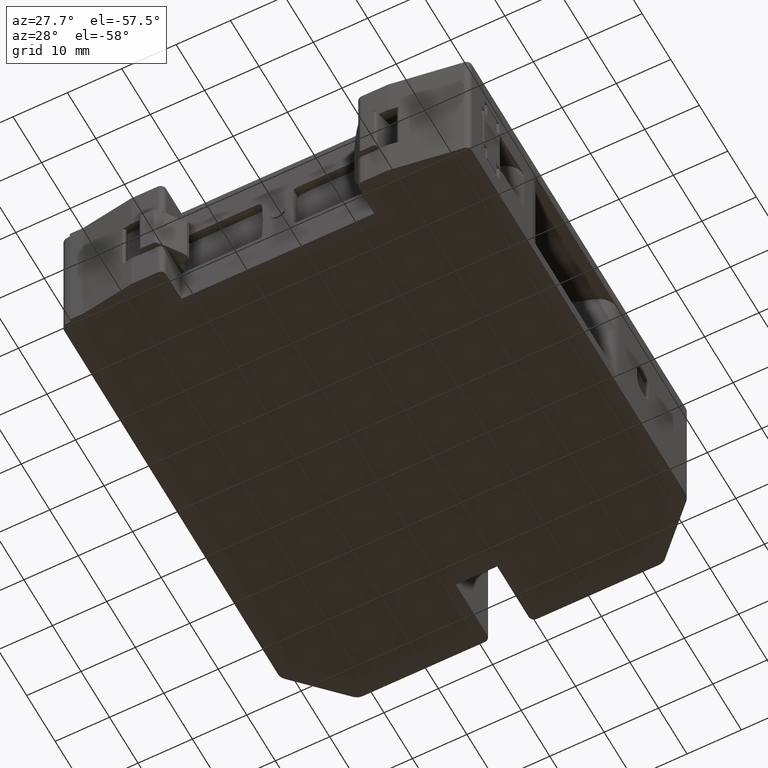
[diagram: clean part render]
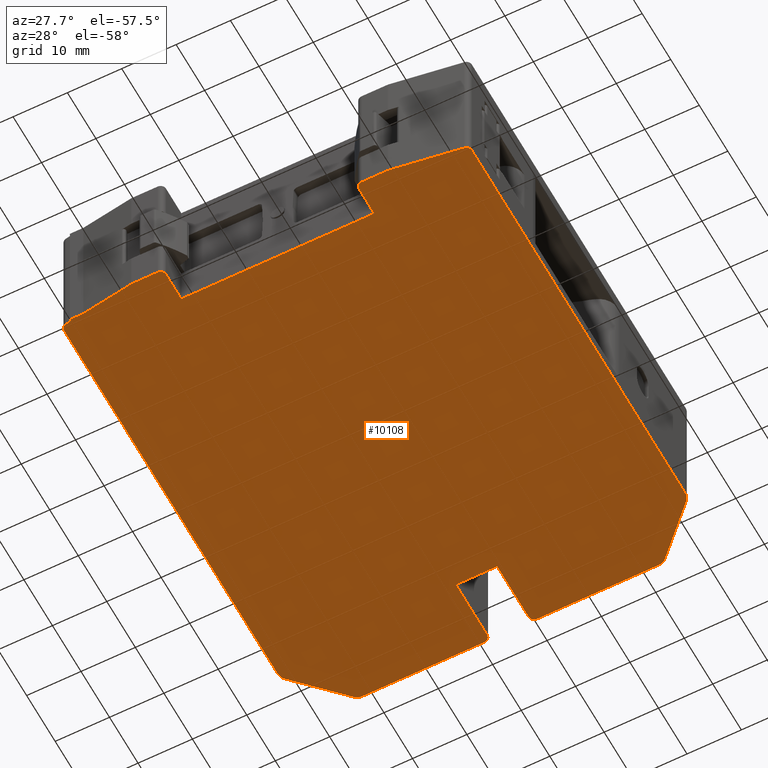
[diagram: same view with one face highlighted and labeled with its STEP entity id]
A machine part, auxiliary view. The second image highlights one B-rep face of the part: STEP entity #10108.
In plain terms, the highlighted planar face has unit normal (-0, 0, -1).
Its self-contained STEP definition (entity closure, byte-faithful):
#11 = CIRCLE ( 'NONE', #12, 1.000000000000000900 ) ;
#12 = AXIS2_PLACEMENT_3D ( 'NONE', #16915, #16982, #16924 ) ;
#31 = CIRCLE ( 'NONE', #32, 1.000000000000000900 ) ;
#32 = AXIS2_PLACEMENT_3D ( 'NONE', #17071, #17089, #17051 ) ;
#33 = CIRCLE ( 'NONE', #34, 1.999999999999998200 ) ;
#34 = AXIS2_PLACEMENT_3D ( 'NONE', #17044, #17075, #17059 ) ;
#75 = AXIS2_PLACEMENT_3D ( 'NONE', #17807, #17808, #17809 ) ;
#81 = CIRCLE ( 'NONE', #75, 1.999999999999939400 ) ;
#110 = CIRCLE ( 'NONE', #150, 1.999999999999974000 ) ;
#150 = AXIS2_PLACEMENT_3D ( 'NONE', #12453, #12435, #12465 ) ;
#461 = LINE ( 'NONE', #601, #16539 ) ;
#573 = DIRECTION ( 'NONE',  ( -1.000000000000000000, 3.007920892131264700E-032, 2.448524028097272300E-014 ) ) ;
#601 = CARTESIAN_POINT ( 'NONE',  ( 29.30214936950242000, -60.00704621402866900, -24.25450991170726000 ) ) ;
#639 = LINE ( 'NONE', #661, #16548 ) ;
#657 = DIRECTION ( 'NONE',  ( 4.678622643038188300E-030, 1.000000000000000000, 5.668231806829383100E-016 ) ) ;
#661 = CARTESIAN_POINT ( 'NONE',  ( -30.54246009920980100, -53.59993437637680800, -24.25450991170579200 ) ) ;
#1346 = CARTESIAN_POINT ( 'NONE',  ( -28.04609261156722500, -60.00704621402866900, -24.25450991170585600 ) ) ;
#1566 = VECTOR ( 'NONE', #20012, 1000.000000000000100 ) ;
#1588 = VECTOR ( 'NONE', #20021, 1000.000000000000000 ) ;
#1592 = CIRCLE ( 'NONE', #1601, 0.9999999999999749100 ) ;
#1601 = AXIS2_PLACEMENT_3D ( 'NONE', #20051, #20053, #20052 ) ;
#1612 = VECTOR ( 'NONE', #20085, 1000.000000000000000 ) ;
#1624 = CIRCLE ( 'NONE', #1625, 0.9999999999997545300 ) ;
#1625 = AXIS2_PLACEMENT_3D ( 'NONE', #20097, #20096, #20095 ) ;
#1636 = CIRCLE ( 'NONE', #1647, 0.9999999999999731300 ) ;
#1647 = AXIS2_PLACEMENT_3D ( 'NONE', #20156, #20276, #20054 ) ;
#1682 = VECTOR ( 'NONE', #14184, 1000.000000000000000 ) ;
#1836 = VECTOR ( 'NONE', #24073, 1000.000000000000000 ) ;
#1838 = VECTOR ( 'NONE', #24099, 1000.000000000000000 ) ;
#1839 = AXIS2_PLACEMENT_3D ( 'NONE', #24110, #24129, #24136 ) ;
#1841 = CIRCLE ( 'NONE', #1861, 0.9999999999998898700 ) ;
#1854 = CIRCLE ( 'NONE', #1839, 0.9999999999999662500 ) ;
#1861 = AXIS2_PLACEMENT_3D ( 'NONE', #24070, #24083, #24097 ) ;
#1872 = CIRCLE ( 'NONE', #1900, 1.000000000000000900 ) ;
#1878 = VECTOR ( 'NONE', #19013, 1000.000000000000000 ) ;
#1897 = VECTOR ( 'NONE', #22399, 1000.000000000000000 ) ;
#1900 = AXIS2_PLACEMENT_3D ( 'NONE', #19002, #18996, #19000 ) ;
#1934 = EDGE_CURVE ( 'NONE', #11182, #11340, #20726, .T. ) ;
#3756 = VECTOR ( 'NONE', #20736, 1000.000000000000100 ) ;
#5756 = EDGE_LOOP ( 'NONE', ( #21811, #21826, #21807, #21801, #21827, #21828, #21802, #21796, #21822, #21804, #21849, #21852, #21858, #21833, #21817, #21834, #21856, #21840, #21837, #21851, #21854, #21830, #21832, #21860, #21836, #21850, #21838, #21846, #21812, #21853, #21855 ) ) ;
#5886 = LINE ( 'NONE', #5968, #1897 ) ;
#5968 = CARTESIAN_POINT ( 'NONE',  ( 315.2915140385550200, -18.59369379607220900, -24.25450991171424100 ) ) ;
#8019 = EDGE_CURVE ( 'NONE', #20442, #20405, #19985, .T. ) ;
#8030 = EDGE_CURVE ( 'NONE', #20426, #20446, #20016, .T. ) ;
#8044 = EDGE_CURVE ( 'NONE', #20455, #20446, #1592, .T. ) ;
#8065 = EDGE_CURVE ( 'NONE', #20455, #20425, #20065, .T. ) ;
#8067 = EDGE_CURVE ( 'NONE', #20426, #11340, #1624, .T. ) ;
#8088 = EDGE_CURVE ( 'NONE', #20442, #11623, #1636, .T. ) ;
#8215 = CARTESIAN_POINT ( 'NONE',  ( 1.334948940202564000, -53.59993437637680800, -24.25450991170657000 ) ) ;
#8270 = LINE ( 'NONE', #8215, #9966 ) ;
#8272 = DIRECTION ( 'NONE',  ( 2.525920139703856900E-029, -1.000000000000000000, -5.668231806829383100E-016 ) ) ;
#8293 = CARTESIAN_POINT ( 'NONE',  ( 40.63494894020685400, 16.33133758237956500, -24.25450991170750800 ) ) ;
#8296 = DIRECTION ( 'NONE',  ( -1.000000000000000000, 5.204170427933684800E-015, 2.428612866369052700E-014 ) ) ;
#8312 = DIRECTION ( 'NONE',  ( 2.448524028097272300E-014, -5.668231806829383100E-016, 1.000000000000000000 ) ) ;
#8541 = DIRECTION ( 'NONE',  ( 1.000000000000000000, 1.548027470065081100E-028, -2.448524028097272300E-014 ) ) ;
#8551 = LINE ( 'NONE', #8553, #9979 ) ;
#8553 = CARTESIAN_POINT ( 'NONE',  ( 29.30214936950242000, 26.56129512537441800, -24.25450991170721000 ) ) ;
#8627 = LINE ( 'NONE', #8642, #9983 ) ;
#8632 = DIRECTION ( 'NONE',  ( 0.7071067811865474600, 0.7071067811865474600, -1.691287492686318800E-014 ) ) ;
#8642 = CARTESIAN_POINT ( 'NONE',  ( -36.91130038689878000, 12.61351538002439200, -24.25450991170559700 ) ) ;
#8700 = EDGE_CURVE ( 'NONE', #20416, #20406, #1841, .T. ) ;
#8703 = EDGE_CURVE ( 'NONE', #20420, #11809, #24076, .T. ) ;
#8704 = EDGE_CURVE ( 'NONE', #20418, #20416, #24081, .T. ) ;
#8706 = EDGE_CURVE ( 'NONE', #20418, #20441, #1854, .T. ) ;
#8772 = EDGE_CURVE ( 'NONE', #20441, #20435, #19010, .T. ) ;
#8777 = EDGE_CURVE ( 'NONE', #20412, #20420, #1872, .T. ) ;
#8786 = EDGE_CURVE ( 'NONE', #20412, #20406, #5886, .T. ) ;
#8850 = EDGE_CURVE ( 'NONE', #20435, #20425, #14171, .T. ) ;
#9012 = FACE_OUTER_BOUND ( 'NONE', #5756, .T. ) ;
#9036 = PLANE ( 'NONE',  #10003 ) ;
#9037 = CARTESIAN_POINT ( 'NONE',  ( 29.30214936950242000, -53.59993437637680800, -24.25450991170725600 ) ) ;
#9068 = DIRECTION ( 'NONE',  ( -2.448524028097272300E-014, 5.668231806829383100E-016, -1.000000000000000000 ) ) ;
#9105 = DIRECTION ( 'NONE',  ( -1.000000000000000000, 0.0000000000000000000, 2.448524028097272300E-014 ) ) ;
#9713 = VECTOR ( 'NONE', #13581, 1000.000000000000000 ) ;
#9749 = VECTOR ( 'NONE', #13590, 1000.000000000000000 ) ;
#9847 = EDGE_CURVE ( 'NONE', #11836, #11743, #13539, .T. ) ;
#9855 = EDGE_CURVE ( 'NONE', #11743, #11787, #13614, .T. ) ;
#9883 = EDGE_CURVE ( 'NONE', #11805, #11771, #13701, .T. ) ;
#9891 = EDGE_CURVE ( 'NONE', #11978, #11800, #13710, .T. ) ;
#9923 = VECTOR ( 'NONE', #13757, 1000.000000000000000 ) ;
#9929 = VECTOR ( 'NONE', #13693, 1000.000000000000100 ) ;
#9942 = EDGE_CURVE ( 'NONE', #11782, #11836, #8270, .T. ) ;
#9966 = VECTOR ( 'NONE', #8272, 1000.000000000000000 ) ;
#9972 = AXIS2_PLACEMENT_3D ( 'NONE', #8293, #8312, #8296 ) ;
#9979 = VECTOR ( 'NONE', #8541, 1000.000000000000000 ) ;
#9983 = VECTOR ( 'NONE', #8632, 1000.000000000000100 ) ;
#9984 = CIRCLE ( 'NONE', #9972, 1.999999999998745900 ) ;
#9986 = EDGE_CURVE ( 'NONE', #11809, #11771, #9984, .T. ) ;
#10003 = AXIS2_PLACEMENT_3D ( 'NONE', #9037, #9068, #9105 ) ;
#10030 = EDGE_CURVE ( 'NONE', #11784, #11968, #8551, .T. ) ;
#10036 = EDGE_CURVE ( 'NONE', #11925, #12018, #8627, .T. ) ;
#10108 = ADVANCED_FACE ( 'NONE', ( #9012 ), #9036, .T. ) ;
#10670 = EDGE_CURVE ( 'NONE', #11182, #20561, #461, .T. ) ;
#10682 = EDGE_CURVE ( 'NONE', #20561, #20405, #639, .T. ) ;
#11182 = VERTEX_POINT ( 'NONE', #1346 ) ;
#11340 = VERTEX_POINT ( 'NONE', #19115 ) ;
#11623 = VERTEX_POINT ( 'NONE', #19344 ) ;
#11743 = VERTEX_POINT ( 'NONE', #19480 ) ;
#11765 = VERTEX_POINT ( 'NONE', #19459 ) ;
#11771 = VERTEX_POINT ( 'NONE', #19434 ) ;
#11782 = VERTEX_POINT ( 'NONE', #19510 ) ;
#11784 = VERTEX_POINT ( 'NONE', #19487 ) ;
#11787 = VERTEX_POINT ( 'NONE', #19486 ) ;
#11800 = VERTEX_POINT ( 'NONE', #19535 ) ;
#11805 = VERTEX_POINT ( 'NONE', #19517 ) ;
#11809 = VERTEX_POINT ( 'NONE', #19496 ) ;
#11836 = VERTEX_POINT ( 'NONE', #19567 ) ;
#11925 = VERTEX_POINT ( 'NONE', #19049 ) ;
#11968 = VERTEX_POINT ( 'NONE', #16772 ) ;
#11978 = VERTEX_POINT ( 'NONE', #16844 ) ;
#12018 = VERTEX_POINT ( 'NONE', #16911 ) ;
#12435 = DIRECTION ( 'NONE',  ( 2.448524028097272300E-014, -5.668231806829383100E-016, 1.000000000000000000 ) ) ;
#12453 = CARTESIAN_POINT ( 'NONE',  ( -22.13509351680265200, 24.56129512537441400, -24.25450991170595600 ) ) ;
#12465 = DIRECTION ( 'NONE',  ( -1.000000000000000000, -3.469446951953659200E-015, 2.428612866367561500E-014 ) ) ;
#13539 = LINE ( 'NONE', #13548, #9713 ) ;
#13548 = CARTESIAN_POINT ( 'NONE',  ( 8.434948940205861900, 14.56129512537444400, -24.25450991170670900 ) ) ;
#13581 = DIRECTION ( 'NONE',  ( 1.000000000000000000, -2.464568551788949800E-029, -2.448524028097272300E-014 ) ) ;
#13590 = DIRECTION ( 'NONE',  ( -2.525920139703856900E-029, 1.000000000000000000, 5.668231806829383100E-016 ) ) ;
#13602 = CARTESIAN_POINT ( 'NONE',  ( 8.934948940205970300, -53.59993437637680800, -24.25450991170675500 ) ) ;
#13614 = LINE ( 'NONE', #13602, #9749 ) ;
#13693 = DIRECTION ( 'NONE',  ( 0.7071067811865474600, -0.7071067811865474600, -1.771448395645245000E-014 ) ) ;
#13701 = LINE ( 'NONE', #13719, #9929 ) ;
#13710 = LINE ( 'NONE', #13753, #9923 ) ;
#13719 = CARTESIAN_POINT ( 'NONE',  ( 71.34839869660505900, -11.55368504927417600, -24.25450991170826100 ) ) ;
#13753 = CARTESIAN_POINT ( 'NONE',  ( 29.30214936950242000, 26.56129512537347300, -24.25450991170721000 ) ) ;
#13757 = DIRECTION ( 'NONE',  ( 1.000000000000000000, 1.603500106181745500E-028, -2.448524028097272300E-014 ) ) ;
#14163 = CARTESIAN_POINT ( 'NONE',  ( 29.30214936950242000, -55.09993130216380300, -24.25450991170725600 ) ) ;
#14171 = LINE ( 'NONE', #14163, #1682 ) ;
#14184 = DIRECTION ( 'NONE',  ( -1.000000000000000000, 0.0000000000000000000, 2.448524028097272300E-014 ) ) ;
#16539 = VECTOR ( 'NONE', #573, 1000.000000000000000 ) ;
#16548 = VECTOR ( 'NONE', #657, 1000.000000000000000 ) ;
#16772 = CARTESIAN_POINT ( 'NONE',  ( 0.3349489402028338300, 26.56129512537441400, -24.25450991170651000 ) ) ;
#16844 = CARTESIAN_POINT ( 'NONE',  ( 9.934948940205972100, 26.56129512537347300, -24.25450991170671600 ) ) ;
#16911 = CARTESIAN_POINT ( 'NONE',  ( -23.54930707917421600, 25.97550868774894500, -24.25450991170592700 ) ) ;
#16915 = CARTESIAN_POINT ( 'NONE',  ( 9.934948940205972100, 25.56129512537346200, -24.25450991170671600 ) ) ;
#16924 = DIRECTION ( 'NONE',  ( -1.000000000000000000, 0.0000000000000000000, 2.428612866367527700E-014 ) ) ;
#16982 = DIRECTION ( 'NONE',  ( 2.448524028097272300E-014, -5.668231806829383100E-016, 1.000000000000000000 ) ) ;
#17044 = CARTESIAN_POINT ( 'NONE',  ( 32.40499139721119800, 24.56129512537346600, -24.25450991170728800 ) ) ;
#17051 = DIRECTION ( 'NONE',  ( -1.000000000000000000, 0.0000000000000000000, 2.428612866367527700E-014 ) ) ;
#17059 = DIRECTION ( 'NONE',  ( -1.000000000000000000, 1.734723475976808700E-015, 2.428612866367532100E-014 ) ) ;
#17071 = CARTESIAN_POINT ( 'NONE',  ( 0.3349489402025629900, 25.56129512537441400, -24.25450991170651000 ) ) ;
#17075 = DIRECTION ( 'NONE',  ( 2.448524028097272300E-014, -5.668231806829383100E-016, 1.000000000000000000 ) ) ;
#17089 = DIRECTION ( 'NONE',  ( 2.448524028097272300E-014, -5.668231806829383100E-016, 1.000000000000000000 ) ) ;
#17807 = CARTESIAN_POINT ( 'NONE',  ( -30.36505105979740200, 16.33133758237956500, -24.25450991170576000 ) ) ;
#17808 = DIRECTION ( 'NONE',  ( 2.448524028097272300E-014, -5.668231806829383100E-016, 1.000000000000000000 ) ) ;
#17809 = DIRECTION ( 'NONE',  ( -1.000000000000000000, 1.387778780781487800E-014, 2.428612866367603500E-014 ) ) ;
#18996 = DIRECTION ( 'NONE',  ( 2.448524028097272300E-014, -5.668231806829383100E-016, 1.000000000000000000 ) ) ;
#19000 = DIRECTION ( 'NONE',  ( -1.000000000000000000, 0.0000000000000000000, 2.428612866367527700E-014 ) ) ;
#19002 = CARTESIAN_POINT ( 'NONE',  ( 41.63494894020308800, -58.49968170351445500, -24.25450991170755800 ) ) ;
#19010 = LINE ( 'NONE', #19012, #1878 ) ;
#19012 = CARTESIAN_POINT ( 'NONE',  ( 22.88494170432973700, -53.59993437637577100, -24.25450991170710000 ) ) ;
#19013 = DIRECTION ( 'NONE',  ( 1.609390023793845000E-013, 1.000000000000000000, 5.668231806789976500E-016 ) ) ;
#19049 = CARTESIAN_POINT ( 'NONE',  ( -31.77926462217014200, 17.74555114475302300, -24.25450991170573200 ) ) ;
#19115 = CARTESIAN_POINT ( 'NONE',  ( -18.54460250782192400, -61.42771029660850200, -24.25450991170608700 ) ) ;
#19344 = CARTESIAN_POINT ( 'NONE',  ( -32.36505105979711800, -58.49967953969945000, -24.25450991170575300 ) ) ;
#19434 = CARTESIAN_POINT ( 'NONE',  ( 42.04916250257835500, 17.74555114475252900, -24.25450991170753700 ) ) ;
#19459 = CARTESIAN_POINT ( 'NONE',  ( -32.36505105979725300, 16.33133758237948600, -24.25450991170570300 ) ) ;
#19480 = CARTESIAN_POINT ( 'NONE',  ( 8.934948940205972100, 14.56129512537444400, -24.25450991170671600 ) ) ;
#19486 = CARTESIAN_POINT ( 'NONE',  ( 8.934948940205972100, 25.56129512537337300, -24.25450991170669100 ) ) ;
#19487 = CARTESIAN_POINT ( 'NONE',  ( -22.13509351680265200, 26.56129512537441400, -24.25450991170595600 ) ) ;
#19496 = CARTESIAN_POINT ( 'NONE',  ( 42.63494894020559700, 16.33133758237956100, -24.25450991170753700 ) ) ;
#19510 = CARTESIAN_POINT ( 'NONE',  ( 1.334948940202564000, 25.56129512537440400, -24.25450991170653800 ) ) ;
#19517 = CARTESIAN_POINT ( 'NONE',  ( 33.81920495958417700, 25.97550868774671400, -24.25450991170731300 ) ) ;
#19535 = CARTESIAN_POINT ( 'NONE',  ( 32.40499139721152500, 26.56129512537347300, -24.25450991170727400 ) ) ;
#19567 = CARTESIAN_POINT ( 'NONE',  ( 1.334948940204788900, 14.56129512537444400, -24.25450991170653100 ) ) ;
#19955 = EDGE_CURVE ( 'NONE', #11623, #11765, #23835, .T. ) ;
#19985 = LINE ( 'NONE', #20004, #1566 ) ;
#20002 = CARTESIAN_POINT ( 'NONE',  ( 27.28494894019839000, -61.43870487463007600, -24.25450991170721000 ) ) ;
#20004 = CARTESIAN_POINT ( 'NONE',  ( 306.8003474498290800, -110.0732548635922500, -24.25450991171408100 ) ) ;
#20012 = DIRECTION ( 'NONE',  ( 0.9890058987969039300, -0.1478760702241179700, -2.429986665581291200E-014 ) ) ;
#20016 = LINE ( 'NONE', #20002, #1588 ) ;
#20021 = DIRECTION ( 'NONE',  ( 1.000000000000000000, -7.527063337521148800E-014, -2.448524028097276700E-014 ) ) ;
#20051 = CARTESIAN_POINT ( 'NONE',  ( -13.61505829567242300, -60.43870439781260700, -24.25450991170620800 ) ) ;
#20052 = DIRECTION ( 'NONE',  ( -1.000000000000000000, 0.0000000000000000000, 2.428612866367590800E-014 ) ) ;
#20053 = DIRECTION ( 'NONE',  ( -2.448524028097272300E-014, 5.668231806829383100E-016, -1.000000000000000000 ) ) ;
#20054 = DIRECTION ( 'NONE',  ( -1.000000000000000000, 0.0000000000000000000, 2.428612866367595200E-014 ) ) ;
#20065 = LINE ( 'NONE', #20078, #1612 ) ;
#20078 = CARTESIAN_POINT ( 'NONE',  ( -12.61505829567108300, -53.59993437637049900, -24.25450991170622900 ) ) ;
#20085 = DIRECTION ( 'NONE',  ( 1.505412667504014900E-013, 1.000000000000000000, 5.668231806792522600E-016 ) ) ;
#20095 = DIRECTION ( 'NONE',  ( -1.000000000000000000, 0.0000000000000000000, 2.428612866368126000E-014 ) ) ;
#20096 = DIRECTION ( 'NONE',  ( -2.448524028097272300E-014, 5.668231806829383100E-016, -1.000000000000000000 ) ) ;
#20097 = CARTESIAN_POINT ( 'NONE',  ( -18.39672643759793800, -60.43870439781189700, -24.25450991170609400 ) ) ;
#20156 = CARTESIAN_POINT ( 'NONE',  ( -31.36505105979711800, -58.49967953969945000, -24.25450991170576700 ) ) ;
#20276 = DIRECTION ( 'NONE',  ( -2.448524028097272300E-014, 5.668231806829383100E-016, -1.000000000000000000 ) ) ;
#20405 = VERTEX_POINT ( 'NONE', #23879 ) ;
#20406 = VERTEX_POINT ( 'NONE', #23881 ) ;
#20412 = VERTEX_POINT ( 'NONE', #23903 ) ;
#20416 = VERTEX_POINT ( 'NONE', #23911 ) ;
#20418 = VERTEX_POINT ( 'NONE', #23886 ) ;
#20420 = VERTEX_POINT ( 'NONE', #23906 ) ;
#20425 = VERTEX_POINT ( 'NONE', #23888 ) ;
#20426 = VERTEX_POINT ( 'NONE', #23924 ) ;
#20435 = VERTEX_POINT ( 'NONE', #23983 ) ;
#20441 = VERTEX_POINT ( 'NONE', #23954 ) ;
#20442 = VERTEX_POINT ( 'NONE', #23997 ) ;
#20446 = VERTEX_POINT ( 'NONE', #23969 ) ;
#20455 = VERTEX_POINT ( 'NONE', #23988 ) ;
#20561 = VERTEX_POINT ( 'NONE', #23018 ) ;
#20726 = LINE ( 'NONE', #20731, #3756 ) ;
#20731 = CARTESIAN_POINT ( 'NONE',  ( 306.8003474498290800, -110.0732548635922500, -24.25450991171408100 ) ) ;
#20736 = DIRECTION ( 'NONE',  ( 0.9890058987969039300, -0.1478760702241179700, -2.429986665581291200E-014 ) ) ;
#21050 = EDGE_CURVE ( 'NONE', #11978, #11787, #11, .T. ) ;
#21071 = EDGE_CURVE ( 'NONE', #11782, #11968, #31, .T. ) ;
#21076 = EDGE_CURVE ( 'NONE', #11805, #11800, #33, .T. ) ;
#21341 = EDGE_CURVE ( 'NONE', #11925, #11765, #81, .T. ) ;
#21538 = EDGE_CURVE ( 'NONE', #11784, #12018, #110, .T. ) ;
#21617 = VECTOR ( 'NONE', #23863, 1000.000000000000000 ) ;
#21796 = ORIENTED_EDGE ( 'NONE', *, *, #10036, .T. ) ;
#21801 = ORIENTED_EDGE ( 'NONE', *, *, #8019, .F. ) ;
#21802 = ORIENTED_EDGE ( 'NONE', *, *, #21341, .F. ) ;
#21804 = ORIENTED_EDGE ( 'NONE', *, *, #10030, .T. ) ;
#21807 = ORIENTED_EDGE ( 'NONE', *, *, #10682, .T. ) ;
#21811 = ORIENTED_EDGE ( 'NONE', *, *, #1934, .F. ) ;
#21812 = ORIENTED_EDGE ( 'NONE', *, *, #8044, .T. ) ;
#21817 = ORIENTED_EDGE ( 'NONE', *, *, #21050, .F. ) ;
#21822 = ORIENTED_EDGE ( 'NONE', *, *, #21538, .F. ) ;
#21826 = ORIENTED_EDGE ( 'NONE', *, *, #10670, .T. ) ;
#21827 = ORIENTED_EDGE ( 'NONE', *, *, #8088, .T. ) ;
#21828 = ORIENTED_EDGE ( 'NONE', *, *, #19955, .T. ) ;
#21830 = ORIENTED_EDGE ( 'NONE', *, *, #8786, .T. ) ;
#21832 = ORIENTED_EDGE ( 'NONE', *, *, #8700, .F. ) ;
#21833 = ORIENTED_EDGE ( 'NONE', *, *, #9855, .T. ) ;
#21834 = ORIENTED_EDGE ( 'NONE', *, *, #9891, .T. ) ;
#21836 = ORIENTED_EDGE ( 'NONE', *, *, #8706, .T. ) ;
#21837 = ORIENTED_EDGE ( 'NONE', *, *, #9986, .F. ) ;
#21838 = ORIENTED_EDGE ( 'NONE', *, *, #8850, .T. ) ;
#21840 = ORIENTED_EDGE ( 'NONE', *, *, #9883, .T. ) ;
#21846 = ORIENTED_EDGE ( 'NONE', *, *, #8065, .F. ) ;
#21849 = ORIENTED_EDGE ( 'NONE', *, *, #21071, .F. ) ;
#21850 = ORIENTED_EDGE ( 'NONE', *, *, #8772, .T. ) ;
#21851 = ORIENTED_EDGE ( 'NONE', *, *, #8703, .F. ) ;
#21852 = ORIENTED_EDGE ( 'NONE', *, *, #9942, .T. ) ;
#21853 = ORIENTED_EDGE ( 'NONE', *, *, #8030, .F. ) ;
#21854 = ORIENTED_EDGE ( 'NONE', *, *, #8777, .F. ) ;
#21855 = ORIENTED_EDGE ( 'NONE', *, *, #8067, .T. ) ;
#21856 = ORIENTED_EDGE ( 'NONE', *, *, #21076, .F. ) ;
#21858 = ORIENTED_EDGE ( 'NONE', *, *, #9847, .T. ) ;
#21860 = ORIENTED_EDGE ( 'NONE', *, *, #8704, .F. ) ;
#22399 = DIRECTION ( 'NONE',  ( -0.9890058987969020400, -0.1478760702241305700, 2.413222748687020200E-014 ) ) ;
#23018 = CARTESIAN_POINT ( 'NONE',  ( -30.54246009920980500, -60.00704621402866900, -24.25450991170578900 ) ) ;
#23834 = CARTESIAN_POINT ( 'NONE',  ( -32.36505105979716000, 32.23635580357840500, -24.25450991170569600 ) ) ;
#23835 = LINE ( 'NONE', #23834, #21617 ) ;
#23863 = DIRECTION ( 'NONE',  ( 6.575794753698691200E-029, 1.000000000000000000, 5.668231806829383100E-016 ) ) ;
#23879 = CARTESIAN_POINT ( 'NONE',  ( -30.54246009920978700, -59.63378957889949600, -24.25450991170579600 ) ) ;
#23881 = CARTESIAN_POINT ( 'NONE',  ( 28.81448591647758300, -61.42771029661584900, -24.25450991170724900 ) ) ;
#23886 = CARTESIAN_POINT ( 'NONE',  ( 23.88494170432808200, -61.43870439781815000, -24.25450991170712800 ) ) ;
#23888 = CARTESIAN_POINT ( 'NONE',  ( -12.61505829567142300, -55.09993130220475200, -24.25450991170623300 ) ) ;
#23903 = CARTESIAN_POINT ( 'NONE',  ( 41.78282501042709600, -59.48868760231140800, -24.25450991170757200 ) ) ;
#23906 = CARTESIAN_POINT ( 'NONE',  ( 42.63494894020308800, -58.49968170351445500, -24.25450991170758600 ) ) ;
#23911 = CARTESIAN_POINT ( 'NONE',  ( 28.66660984625357100, -61.43870439781885300, -24.25450991170724500 ) ) ;
#23924 = CARTESIAN_POINT ( 'NONE',  ( -18.39672643759793800, -61.43870439781164800, -24.25450991170609400 ) ) ;
#23954 = CARTESIAN_POINT ( 'NONE',  ( 22.88494170432857900, -60.43870439781790800, -24.25450991170710300 ) ) ;
#23969 = CARTESIAN_POINT ( 'NONE',  ( -13.61505829567242300, -61.43870439781240100, -24.25450991170621200 ) ) ;
#23983 = CARTESIAN_POINT ( 'NONE',  ( 22.88494170432908000, -55.09993130221004500, -24.25450991170710000 ) ) ;
#23988 = CARTESIAN_POINT ( 'NONE',  ( -12.61505829567192400, -60.43870439781255000, -24.25450991170623300 ) ) ;
#23997 = CARTESIAN_POINT ( 'NONE',  ( -31.51292713002110100, -59.48868543849635400, -24.25450991170576700 ) ) ;
#24070 = CARTESIAN_POINT ( 'NONE',  ( 28.66660984625406900, -60.43870439781900200, -24.25450991170724500 ) ) ;
#24072 = CARTESIAN_POINT ( 'NONE',  ( 27.28494894019839000, -61.43870487463007600, -24.25450991170721000 ) ) ;
#24073 = DIRECTION ( 'NONE',  ( 1.000000000000000000, -7.527063337521148800E-014, -2.448524028097276700E-014 ) ) ;
#24076 = LINE ( 'NONE', #24095, #1838 ) ;
#24081 = LINE ( 'NONE', #24072, #1836 ) ;
#24083 = DIRECTION ( 'NONE',  ( 2.448524028097272300E-014, -5.668231806829383100E-016, 1.000000000000000000 ) ) ;
#24095 = CARTESIAN_POINT ( 'NONE',  ( 42.63494894020291100, -53.59993437637680800, -24.25450991170758300 ) ) ;
#24097 = DIRECTION ( 'NONE',  ( -1.000000000000000000, -2.775557561563197100E-014, 2.428612866367797500E-014 ) ) ;
#24099 = DIRECTION ( 'NONE',  ( 3.771841561071713900E-029, 1.000000000000000000, 5.668231806829383100E-016 ) ) ;
#24110 = CARTESIAN_POINT ( 'NONE',  ( 23.88494170432858300, -60.43870439781825600, -24.25450991170712800 ) ) ;
#24129 = DIRECTION ( 'NONE',  ( -2.448524028097272300E-014, 5.668231806829383100E-016, -1.000000000000000000 ) ) ;
#24136 = DIRECTION ( 'NONE',  ( -1.000000000000000000, 0.0000000000000000000, 2.428612866367612000E-014 ) ) ;